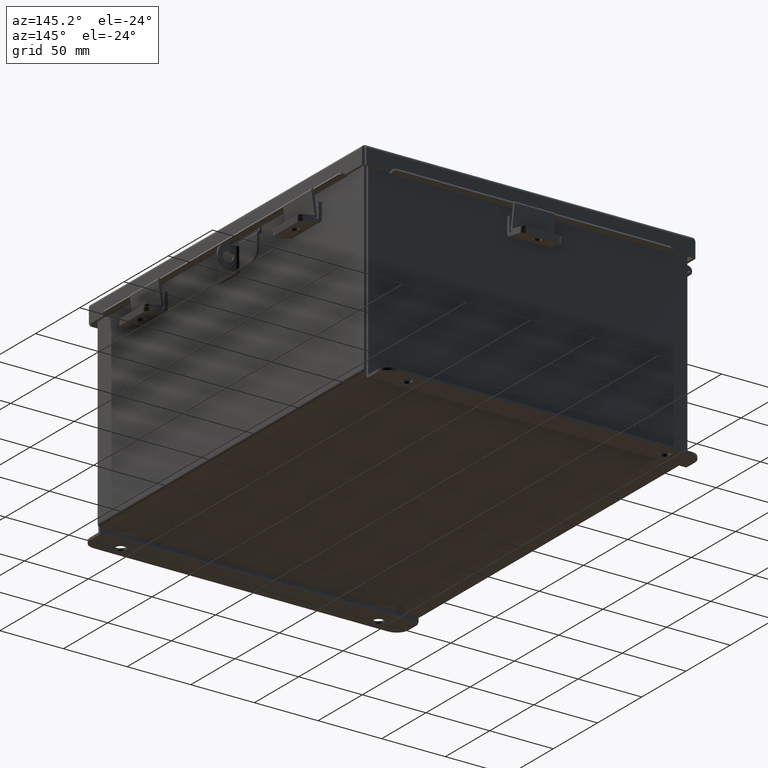
[diagram: clean part render]
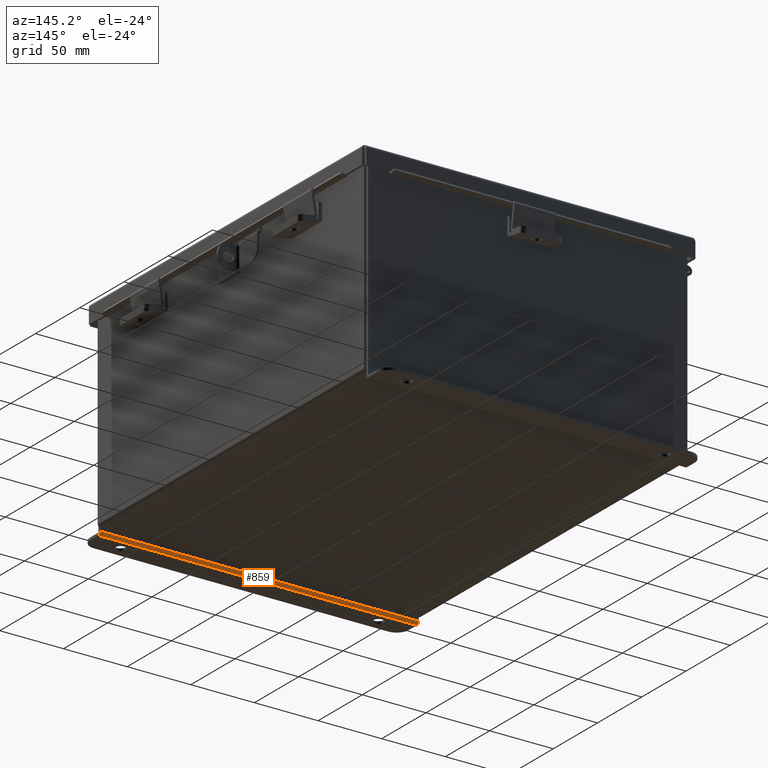
[diagram: same view with one face highlighted and labeled with its STEP entity id]
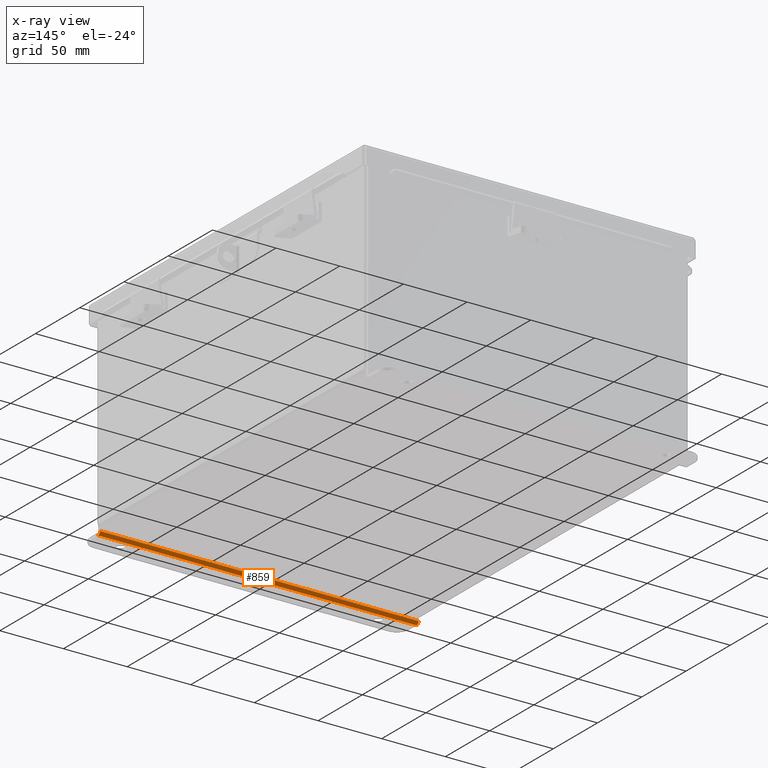
[diagram: x-ray of the same camera — body ghosted, the highlighted face saturated]
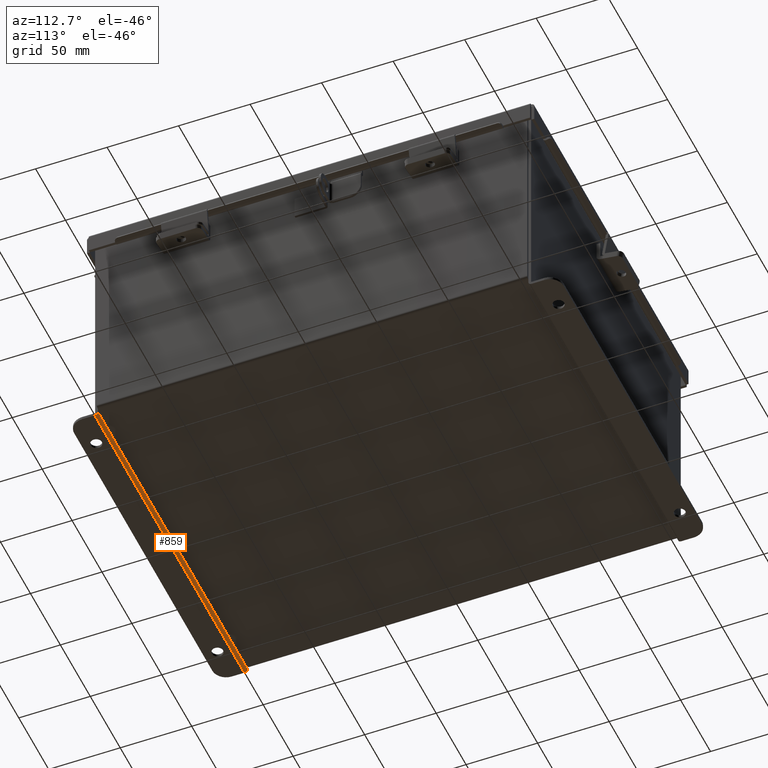
[diagram: same view with one face highlighted and labeled with its STEP entity id]
A machine part, auxiliary view. The second image highlights one B-rep face of the part: STEP entity #859.
The next image is the same camera in x-ray: the body ghosted, the highlighted face saturated — about 0% of this face is hidden behind the body in this view.
A second angle (auxiliary view) of the same face is appended — the face is thin or edge-on in the first view.
In plain terms, the highlighted cylindrical surface (edge-blend (fillet) strip) has radius 2.2276 mm, axis along (1, 0, -0).
Its self-contained STEP definition (entity closure, byte-faithful):
#337 = LINE ( 'NONE', #4720, #14011 ) ;
#859 = ADVANCED_FACE ( 'NONE', ( #12430 ), #1553, .T. ) ;
#1005 = CARTESIAN_POINT ( 'NONE',  ( -4.925300000000000900, -0.07470000000000781600, -3.099299999999999500 ) ) ;
#1015 = ORIENTED_EDGE ( 'NONE', *, *, #2893, .T. ) ;
#1292 = ORIENTED_EDGE ( 'NONE', *, *, #11847, .F. ) ;
#1425 = CARTESIAN_POINT ( 'NONE',  ( 4.925299999999999100, -0.07470000000000015500, -3.099299999999999500 ) ) ;
#1553 = CYLINDRICAL_SURFACE ( 'NONE', #12768, 0.08770000000000026400 ) ;
#2893 = EDGE_CURVE ( 'NONE', #8958, #5044, #337, .T. ) ;
#3279 = VECTOR ( 'NONE', #11931, 39.37007874015748100 ) ;
#4465 = DIRECTION ( 'NONE',  ( 0.0000000000000000000, -3.699053013085864000E-015, -1.000000000000000000 ) ) ;
#4720 = CARTESIAN_POINT ( 'NONE',  ( 4.925299999999990200, 0.01300000000000120000, -3.186999999999999800 ) ) ;
#5044 = VERTEX_POINT ( 'NONE', #16392 ) ;
#5709 = VERTEX_POINT ( 'NONE', #10060 ) ;
#5757 = ORIENTED_EDGE ( 'NONE', *, *, #13704, .F. ) ;
#6468 = CIRCLE ( 'NONE', #12568, 0.08770000000000026400 ) ;
#6546 = DIRECTION ( 'NONE',  ( -1.000000000000000000, -4.910036603141682400E-031, 0.0000000000000000000 ) ) ;
#6709 = EDGE_LOOP ( 'NONE', ( #5757, #1292, #1015, #12785 ) ) ;
#6888 = DIRECTION ( 'NONE',  ( -1.000000000000000000, -4.910036603141682400E-031, 0.0000000000000000000 ) ) ;
#7902 = DIRECTION ( 'NONE',  ( 1.000000000000000000, 4.910036603141682400E-031, -0.0000000000000000000 ) ) ;
#8071 = CIRCLE ( 'NONE', #10528, 0.08770000000000026400 ) ;
#8958 = VERTEX_POINT ( 'NONE', #15576 ) ;
#9128 = DIRECTION ( 'NONE',  ( 1.000000000000000000, 4.910036603141682400E-031, -0.0000000000000000000 ) ) ;
#10060 = CARTESIAN_POINT ( 'NONE',  ( -4.925300000000000000, -0.07470000000000781600, -3.099299999999999500 ) ) ;
#10528 = AXIS2_PLACEMENT_3D ( 'NONE', #16098, #7902, #17470 ) ;
#11847 = EDGE_CURVE ( 'NONE', #8958, #5709, #6468, .T. ) ;
#11931 = DIRECTION ( 'NONE',  ( 1.000000000000000000, 4.910036603141682400E-031, -0.0000000000000000000 ) ) ;
#12020 = CARTESIAN_POINT ( 'NONE',  ( -4.925300000000000900, 0.01299999999999136600, -3.099299999999999500 ) ) ;
#12430 = FACE_OUTER_BOUND ( 'NONE', #6709, .T. ) ;
#12568 = AXIS2_PLACEMENT_3D ( 'NONE', #15044, #6888, #16424 ) ;
#12768 = AXIS2_PLACEMENT_3D ( 'NONE', #12020, #6546, #4465 ) ;
#12785 = ORIENTED_EDGE ( 'NONE', *, *, #16155, .F. ) ;
#13704 = EDGE_CURVE ( 'NONE', #5709, #16291, #14999, .T. ) ;
#14011 = VECTOR ( 'NONE', #9128, 39.37007874015748100 ) ;
#14999 = LINE ( 'NONE', #1005, #3279 ) ;
#15044 = CARTESIAN_POINT ( 'NONE',  ( -4.925300000000000000, 0.01299999999999136600, -3.099299999999999500 ) ) ;
#15576 = CARTESIAN_POINT ( 'NONE',  ( -4.925300000000008900, 0.01300000000000010700, -3.186999999999999800 ) ) ;
#16098 = CARTESIAN_POINT ( 'NONE',  ( 4.925299999999999100, 0.01300000000000010700, -3.099299999999999500 ) ) ;
#16155 = EDGE_CURVE ( 'NONE', #16291, #5044, #8071, .T. ) ;
#16291 = VERTEX_POINT ( 'NONE', #1425 ) ;
#16392 = CARTESIAN_POINT ( 'NONE',  ( 4.925299999999990200, 0.01300000000000010700, -3.186999999999999800 ) ) ;
#16424 = DIRECTION ( 'NONE',  ( 0.0000000000000000000, 0.0000000000000000000, 1.000000000000000000 ) ) ;
#17470 = DIRECTION ( 'NONE',  ( 0.0000000000000000000, 0.0000000000000000000, 1.000000000000000000 ) ) ;